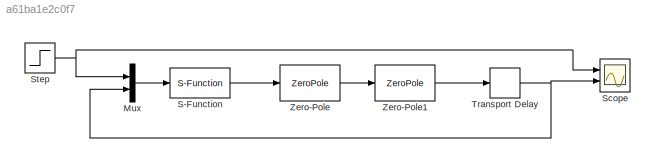
MODEL slx_a61ba1e2c0f7
KIND model
CONFIG AbsTol = auto
CONFIG FixedStep = auto
CONFIG MaxStep = auto
CONFIG MinStep = auto
CONFIG RelTol = 1e-3
CONFIG SampleTimeConstraint = Unconstrained
CONFIG Solver = VariableStepAuto
CONFIG SolverMode = Auto
CONFIG SolverName = VariableStepAuto
CONFIG StartTime = 0.0
CONFIG StopTime = 500.0
BLOCK [Mux] Mux
  DisplayOption = bar
  Inputs = 2
  Ports = [2, 1]
BLOCK [S-Function] S-Function
  EnableBusSupport = off
  FunctionName = pid_sfun
  Parameters = 3.0, 0.01, 1.0, 2.5, 1/50.0
  Ports = [1, 1]
  SFunctionDeploymentMode = off
BLOCK [Scope] Scope
  NumInputPorts = 2
  Ports = [2]
  ScopeSpecificationString = Simulink.scopes.TimeScopeBlockCfg('CurrentConfiguration', extmgr.ConfigurationSet(extmgr.Configuration('Core','General UI',true),extmgr.Configuration('Core','Source UI',true),extmgr.Configuration('Sources','WiredSimulink',true),extmgr.Configuration('Visuals','Time Domain',true,'SerializedDisplays',{struct('MinYLimReal','-0.12997','MaxYLimReal','1.16977','YLabelReal','','MinYLimMag','0.00000','MaxY...<+1397ch>
BLOCK [Step] Step
  SampleTime = 0
BLOCK [TransportDelay] Transport Delay
  DelayTime = 5
  Ports = [1, 1]
BLOCK [ZeroPole] Zero-Pole
  Gain = [1/10]
  Poles = [-1/10]
  Zeros = []
BLOCK [ZeroPole] Zero-Pole1
  Gain = [1/60]
  Poles = [-1/60]
  Zeros = []
LINE Mux:1 -> S-Function:1
LINE S-Function:1 -> Zero-Pole:1
NET Step:1 -> Mux:1, Scope:1
NET Transport Delay:1 -> Mux:2, Scope:2
LINE Zero-Pole1:1 -> Transport Delay:1
LINE Zero-Pole:1 -> Zero-Pole1:1
note: NET lines group one-source signal fan-out (src -> all destinations, sorted); 1:1 wires keep LINE
